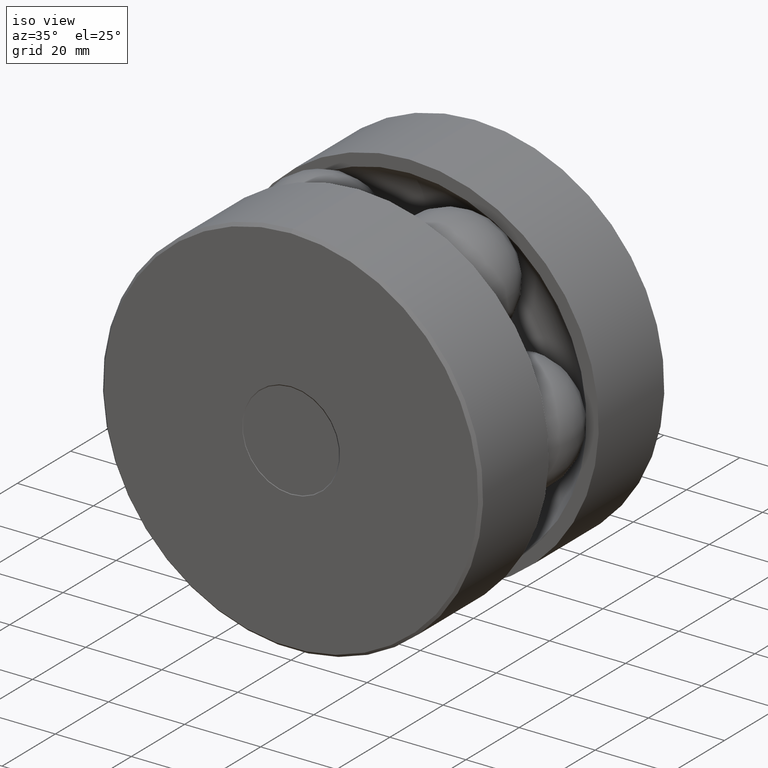
[diagram: clean part render]
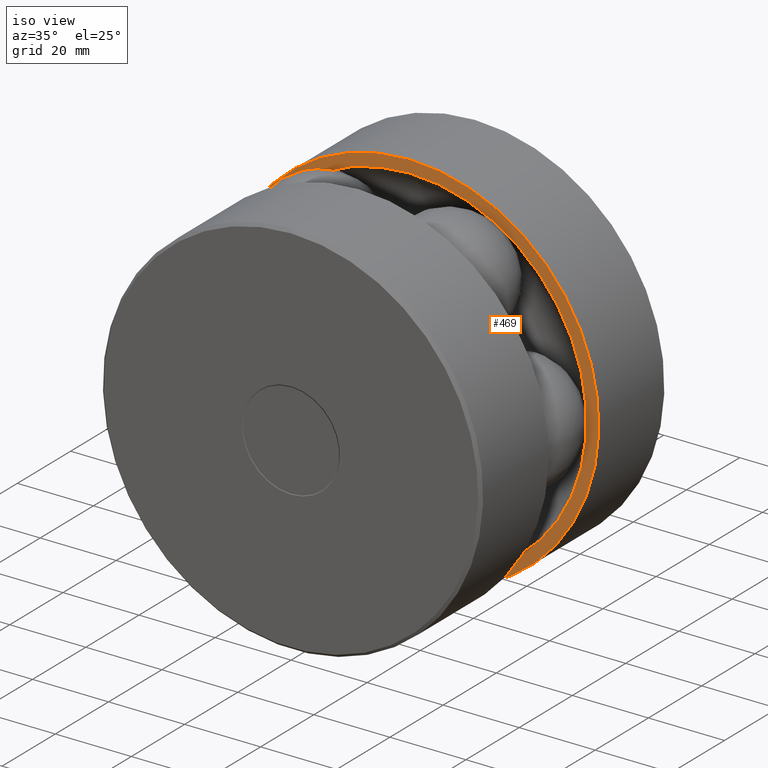
[diagram: same view with one face highlighted and labeled with its STEP entity id]
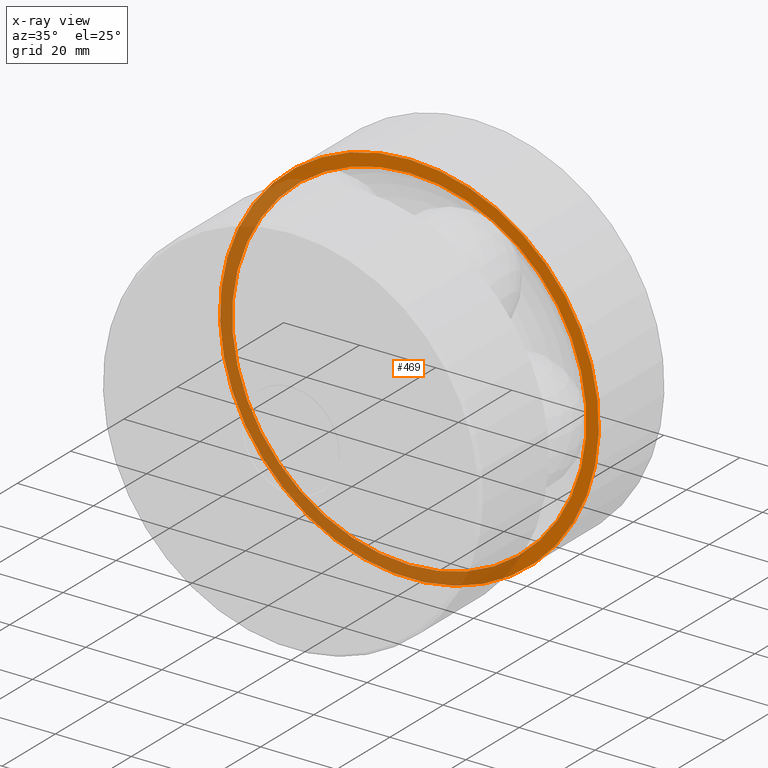
[diagram: x-ray of the same camera — body ghosted, the highlighted face saturated]
A machine part, iso view. The second image highlights one B-rep face of the part: STEP entity #469.
The next image is the same camera in x-ray: the body ghosted, the highlighted face saturated — about 48% of this face is hidden behind the body in this view.
In plain terms, the highlighted planar face has unit normal (0, -1, 0).
Its self-contained STEP definition (entity closure, byte-faithful):
#16 = FACE_BOUND ( 'NONE', #161, .T. ) ;
#29 = ORIENTED_EDGE ( 'NONE', *, *, #79, .F. ) ;
#33 = CARTESIAN_POINT ( 'NONE',  ( 0.0000000000000000000, 1.749999999999999600, 0.0000000000000000000 ) ) ;
#76 = AXIS2_PLACEMENT_3D ( 'NONE', #261, #213, #336 ) ;
#79 = EDGE_CURVE ( 'NONE', #506, #506, #259, .T. ) ;
#161 = EDGE_LOOP ( 'NONE', ( #290 ) ) ;
#169 = EDGE_CURVE ( 'NONE', #497, #497, #439, .T. ) ;
#213 = DIRECTION ( 'NONE',  ( -0.0000000000000000000, 1.000000000000000000, -0.0000000000000000000 ) ) ;
#259 = CIRCLE ( 'NONE', #76, 1.962000000000000000 ) ;
#261 = CARTESIAN_POINT ( 'NONE',  ( 0.0000000000000000000, 1.749999999999999600, 0.0000000000000000000 ) ) ;
#290 = ORIENTED_EDGE ( 'NONE', *, *, #169, .T. ) ;
#323 = AXIS2_PLACEMENT_3D ( 'NONE', #33, #544, #498 ) ;
#336 = DIRECTION ( 'NONE',  ( 0.0000000000000000000, 0.0000000000000000000, 1.000000000000000000 ) ) ;
#343 = CARTESIAN_POINT ( 'NONE',  ( -1.962000000000000000, 1.749999999999999600, 0.0000000000000000000 ) ) ;
#344 = FACE_OUTER_BOUND ( 'NONE', #456, .T. ) ;
#352 = PLANE ( 'NONE',  #375 ) ;
#375 = AXIS2_PLACEMENT_3D ( 'NONE', #343, #474, #516 ) ;
#388 = CARTESIAN_POINT ( 'NONE',  ( 0.0000000000000000000, 1.749999999999999600, 1.962000000000000000 ) ) ;
#392 = CARTESIAN_POINT ( 'NONE',  ( 0.0000000000000000000, 1.749999999999999600, 1.835000000000000400 ) ) ;
#439 = CIRCLE ( 'NONE', #323, 1.835000000000000400 ) ;
#456 = EDGE_LOOP ( 'NONE', ( #29 ) ) ;
#469 = ADVANCED_FACE ( 'NONE', ( #16, #344 ), #352, .T. ) ;
#474 = DIRECTION ( 'NONE',  ( 0.0000000000000000000, -1.000000000000000000, 0.0000000000000000000 ) ) ;
#497 = VERTEX_POINT ( 'NONE', #392 ) ;
#498 = DIRECTION ( 'NONE',  ( 0.0000000000000000000, 0.0000000000000000000, 1.000000000000000000 ) ) ;
#506 = VERTEX_POINT ( 'NONE', #388 ) ;
#516 = DIRECTION ( 'NONE',  ( 0.0000000000000000000, -0.0000000000000000000, -1.000000000000000000 ) ) ;
#544 = DIRECTION ( 'NONE',  ( -0.0000000000000000000, 1.000000000000000000, -0.0000000000000000000 ) ) ;